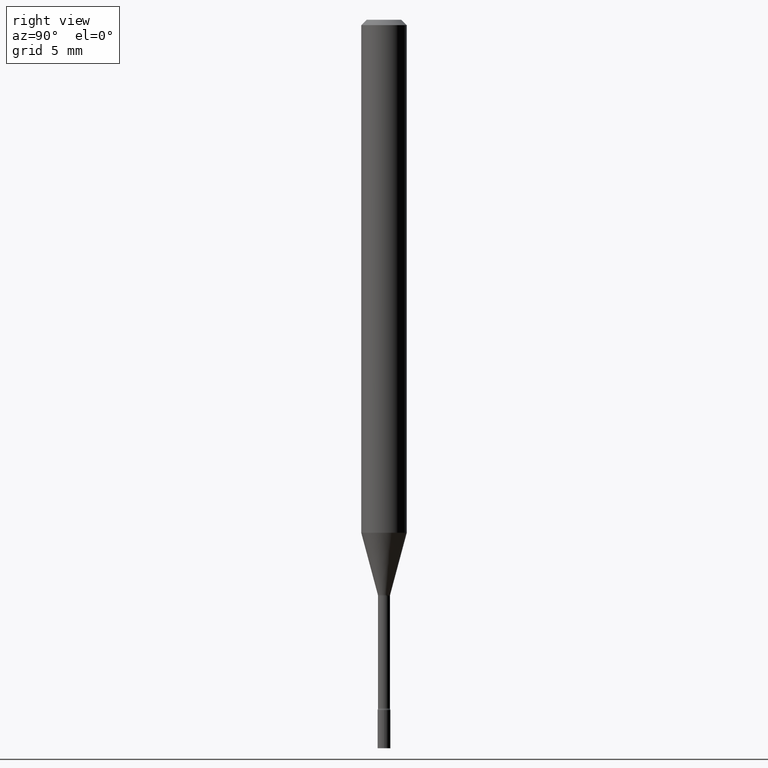
[diagram: clean part render]
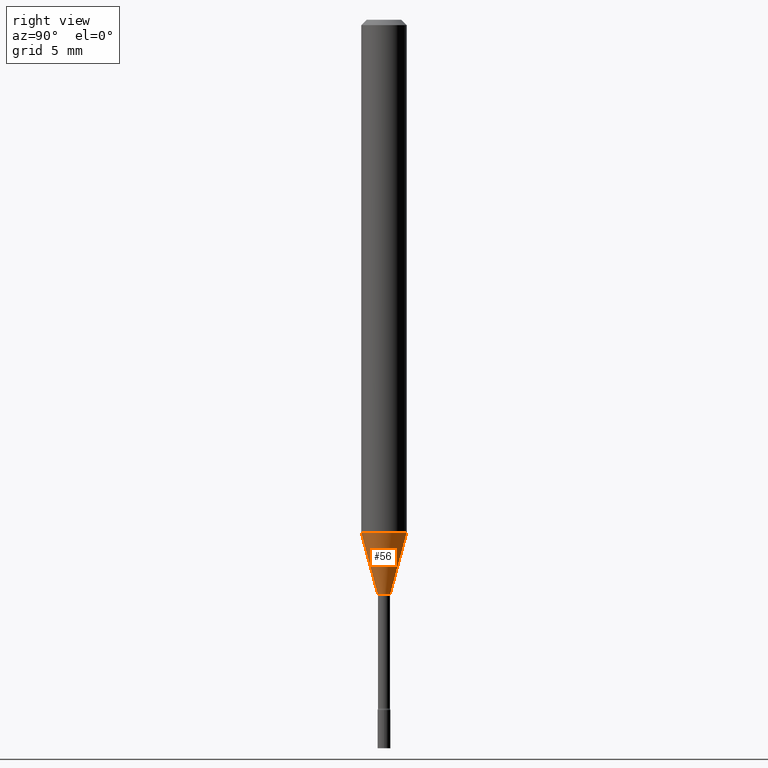
[diagram: same view with one face highlighted and labeled with its STEP entity id]
A machine part, right view. The second image highlights one B-rep face of the part: STEP entity #56.
In plain terms, the highlighted conical surface has half-angle 15 deg.
Its self-contained STEP definition (entity closure, byte-faithful):
#9 = DIRECTION ( 'NONE',  ( -1.807323732225325801E-15, -0.2588190451025175753, 0.9659258262890690894 ) ) ;
#13 = VERTEX_POINT ( 'NONE', #348 ) ;
#41 = DIRECTION ( 'NONE',  ( -6.982962677686266711E-15, -1.000000000000000000, 0.000000000000000000 ) ) ;
#56 = ADVANCED_FACE ( 'NONE', ( #439 ), #375, .T. ) ;
#58 = CARTESIAN_POINT ( 'NONE',  ( 3.443610276063243337E-29, -4.916419463561730281E-15, -1.408139060311453417 ) ) ;
#70 = CARTESIAN_POINT ( 'NONE',  ( 3.859232165984397415E-29, -5.509800068589623693E-15, -1.578092501787273116 ) ) ;
#73 = VECTOR ( 'NONE', #464, 39.37007874015748143 ) ;
#85 = CARTESIAN_POINT ( 'NONE',  ( -1.184388162973470360E-16, -0.01696111260566949067, -1.578092501787273116 ) ) ;
#95 = ORIENTED_EDGE ( 'NONE', *, *, #454, .T. ) ;
#124 = AXIS2_PLACEMENT_3D ( 'NONE', #58, #211, #374 ) ;
#127 = CARTESIAN_POINT ( 'NONE',  ( -1.184388162973470360E-16, -0.01696111260566949067, -1.578092501787273116 ) ) ;
#136 = ORIENTED_EDGE ( 'NONE', *, *, #339, .T. ) ;
#137 = LINE ( 'NONE', #462, #73 ) ;
#141 = VECTOR ( 'NONE', #9, 39.37007874015748854 ) ;
#160 = DIRECTION ( 'NONE',  ( -2.445504405865697767E-29, 3.491430358074373916E-15, 1.000000000000000000 ) ) ;
#171 = AXIS2_PLACEMENT_3D ( 'NONE', #70, #337, #270 ) ;
#180 = CIRCLE ( 'NONE', #124, 0.06250000000000000000 ) ;
#198 = AXIS2_PLACEMENT_3D ( 'NONE', #357, #160, #41 ) ;
#211 = DIRECTION ( 'NONE',  ( -2.445504405865697767E-29, 3.491430358074373916E-15, 1.000000000000000000 ) ) ;
#212 = EDGE_LOOP ( 'NONE', ( #136, #95, #387, #368 ) ) ;
#214 = EDGE_CURVE ( 'NONE', #325, #382, #482, .T. ) ;
#216 = CARTESIAN_POINT ( 'NONE',  ( -4.364351673553573540E-16, -0.06250000000000494049, -1.408139060311453195 ) ) ;
#270 = DIRECTION ( 'NONE',  ( -6.982962677686266711E-15, -1.000000000000000000, 0.000000000000000000 ) ) ;
#306 = VERTEX_POINT ( 'NONE', #407 ) ;
#325 = VERTEX_POINT ( 'NONE', #85 ) ;
#337 = DIRECTION ( 'NONE',  ( -2.445504405865697767E-29, 3.491430358074373916E-15, 1.000000000000000000 ) ) ;
#339 = EDGE_CURVE ( 'NONE', #325, #306, #377, .T. ) ;
#348 = CARTESIAN_POINT ( 'NONE',  ( 4.440892098500969316E-16, 0.06249999999999507339, -1.408139060311453639 ) ) ;
#357 = CARTESIAN_POINT ( 'NONE',  ( 3.859232165984397415E-29, -5.509800068589623693E-15, -1.578092501787273116 ) ) ;
#368 = ORIENTED_EDGE ( 'NONE', *, *, #214, .F. ) ;
#374 = DIRECTION ( 'NONE',  ( -6.982962677686265922E-15, -1.000000000000000000, 4.370956789862821150E-15 ) ) ;
#375 = CONICAL_SURFACE ( 'NONE', #171, 0.01696111260566397771, 0.2617993877991496299 ) ;
#377 = CIRCLE ( 'NONE', #198, 0.01696111260566397771 ) ;
#382 = VERTEX_POINT ( 'NONE', #216 ) ;
#387 = ORIENTED_EDGE ( 'NONE', *, *, #465, .F. ) ;
#407 = CARTESIAN_POINT ( 'NONE',  ( 2.823025816868859611E-16, 0.01696111260565846823, -1.578092501787273116 ) ) ;
#439 = FACE_OUTER_BOUND ( 'NONE', #212, .T. ) ;
#454 = EDGE_CURVE ( 'NONE', #306, #13, #137, .T. ) ;
#462 = CARTESIAN_POINT ( 'NONE',  ( 1.205159535236746208E-16, 0.01696111260565846823, -1.578092501787273116 ) ) ;
#464 = DIRECTION ( 'NONE',  ( 1.839019923739595977E-15, 0.2588190451025243477, 0.9659258262890673130 ) ) ;
#465 = EDGE_CURVE ( 'NONE', #382, #13, #180, .T. ) ;
#482 = LINE ( 'NONE', #127, #141 ) ;